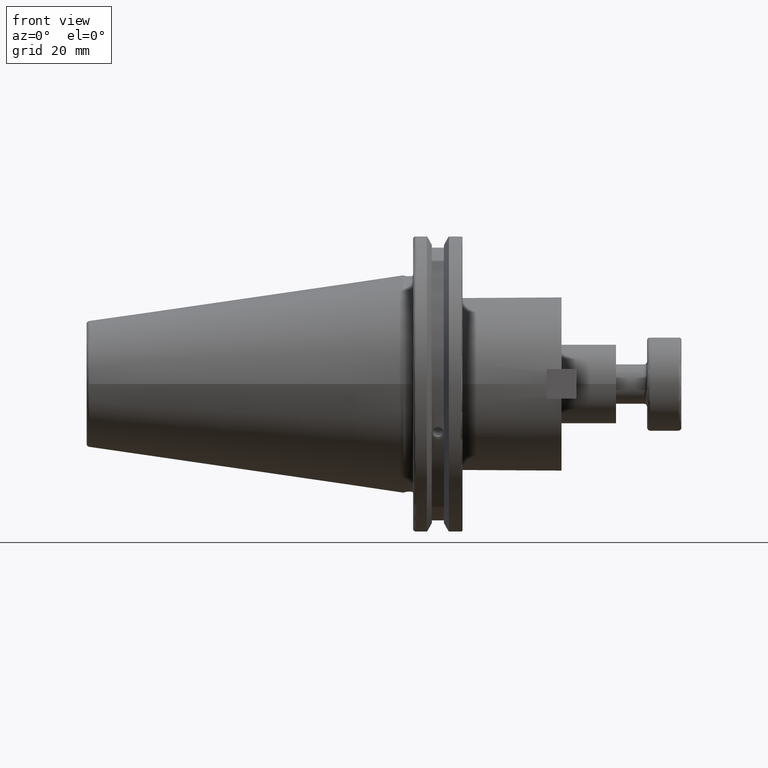
[diagram: clean part render]
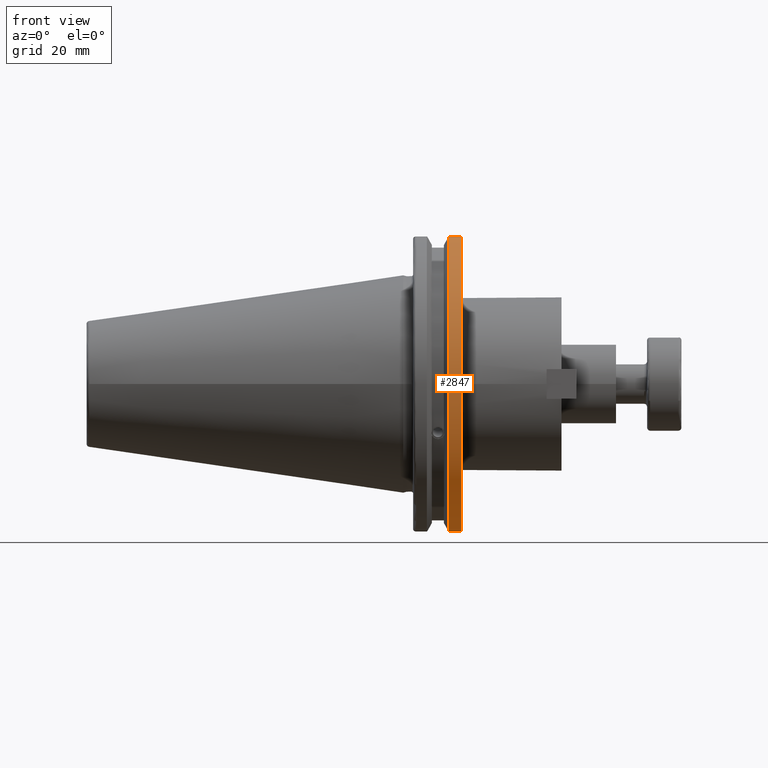
[diagram: same view with one face highlighted and labeled with its STEP entity id]
A machine part, front view. The second image highlights one B-rep face of the part: STEP entity #2847.
In plain terms, the highlighted cylindrical surface (partial cylindrical patch) has radius 49.2125 mm, axis along (1, 0, 0).
Its self-contained STEP definition (entity closure, byte-faithful):
#545=CYLINDRICAL_SURFACE('',#3220,49.2125);
#643=CIRCLE('',#3142,49.2125);
#667=CIRCLE('',#3186,49.2125);
#821=FACE_OUTER_BOUND('',#984,.T.);
#984=EDGE_LOOP('',(#2398,#2399,#2400,#2401));
#1125=LINE('',#4994,#1291);
#1161=LINE('',#5203,#1327);
#1291=VECTOR('',#3703,10.);
#1327=VECTOR('',#3803,10.);
#1460=VERTEX_POINT('',#4713);
#1461=VERTEX_POINT('',#4717);
#1514=VERTEX_POINT('',#4969);
#1515=VERTEX_POINT('',#4980);
#1725=EDGE_CURVE('',#1461,#1460,#643,.T.);
#1792=EDGE_CURVE('',#1514,#1515,#667,.T.);
#1795=EDGE_CURVE('',#1461,#1514,#1125,.T.);
#1860=EDGE_CURVE('',#1515,#1460,#1161,.T.);
#2398=ORIENTED_EDGE('',*,*,#1792,.F.);
#2399=ORIENTED_EDGE('',*,*,#1795,.F.);
#2400=ORIENTED_EDGE('',*,*,#1725,.T.);
#2401=ORIENTED_EDGE('',*,*,#1860,.F.);
#2847=ADVANCED_FACE('',(#821),#545,.T.);
#3142=AXIS2_PLACEMENT_3D('',#4718,#3584,#3585);
#3186=AXIS2_PLACEMENT_3D('',#4981,#3698,#3699);
#3220=AXIS2_PLACEMENT_3D('',#5204,#3804,#3805);
#3584=DIRECTION('center_axis',(1.,0.,0.));
#3585=DIRECTION('ref_axis',(0.,0.,-1.));
#3698=DIRECTION('center_axis',(1.,0.,0.));
#3699=DIRECTION('ref_axis',(0.,-1.,1.60812264967664E-16));
#3703=DIRECTION('',(1.,0.,0.));
#3803=DIRECTION('',(-1.,0.,0.));
#3804=DIRECTION('center_axis',(1.,0.,0.));
#3805=DIRECTION('ref_axis',(0.,-1.,1.22464679914735E-16));
#4713=CARTESIAN_POINT('',(14.6602090340487,-13.4317035994433,-47.3440544806494));
#4717=CARTESIAN_POINT('',(14.6602090340487,-13.4317035994433,47.3440544806494));
#4718=CARTESIAN_POINT('Origin',(14.6602090340487,0.,0.));
#4969=CARTESIAN_POINT('',(18.55,-13.4317035994433,47.3440544806494));
#4980=CARTESIAN_POINT('',(18.55,-13.4317035994433,-47.3440544806494));
#4981=CARTESIAN_POINT('Origin',(18.55,0.,0.));
#4994=CARTESIAN_POINT('',(16.8551045170244,-13.4317035994433,47.3440544806494));
#5203=CARTESIAN_POINT('',(16.8551045170244,-13.4317035994433,-47.3440544806494));
#5204=CARTESIAN_POINT('Origin',(16.8551045170244,0.,0.));